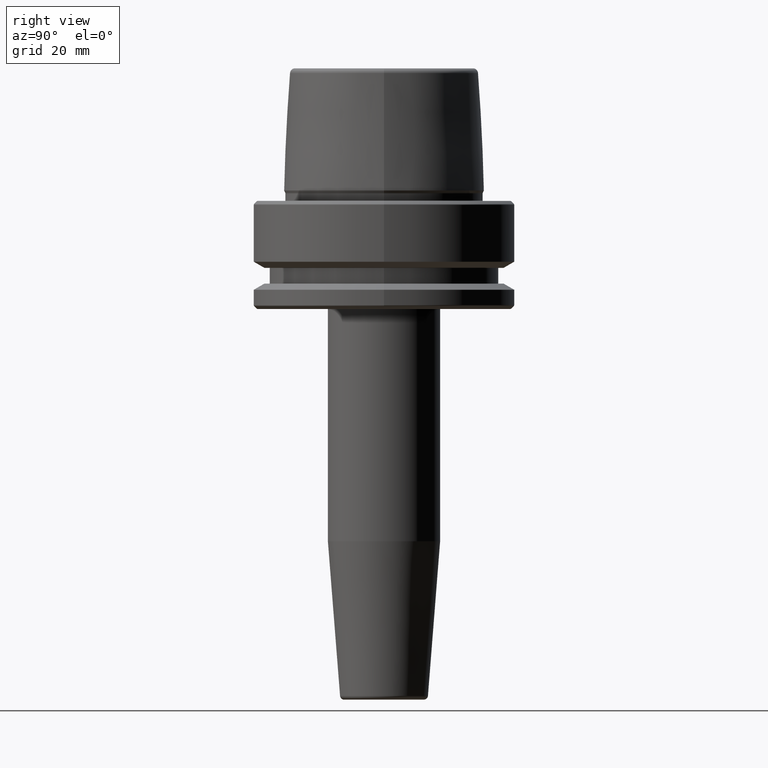
[diagram: clean part render]
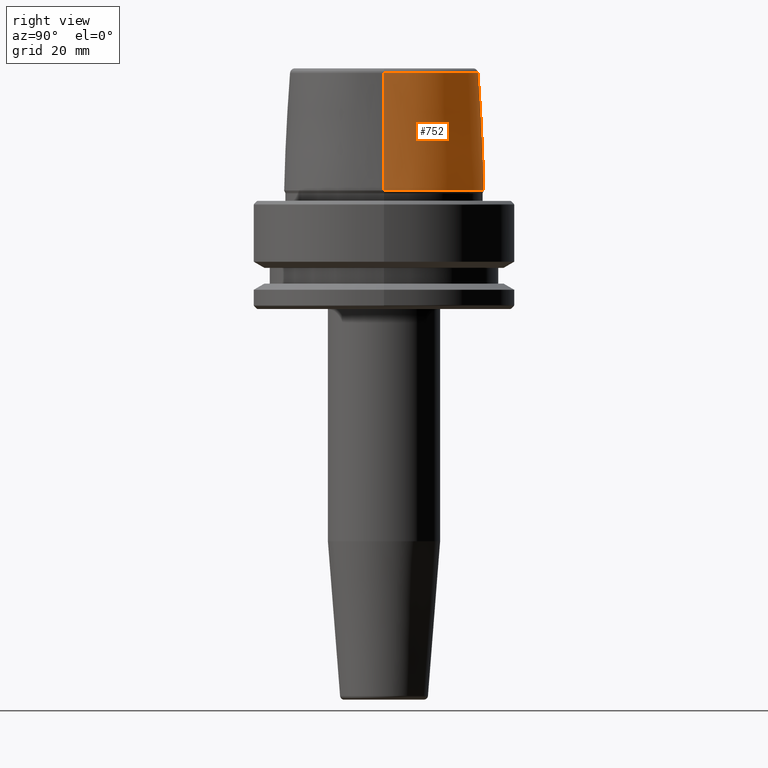
[diagram: same view with one face highlighted and labeled with its STEP entity id]
A machine part, right view. The second image highlights one B-rep face of the part: STEP entity #752.
In plain terms, the highlighted conical surface has half-angle 2.868 deg.
Its self-contained STEP definition (entity closure, byte-faithful):
#27 = CARTESIAN_POINT ( 'NONE',  ( -22.77957961851797100, 0.0000000000000000000, 30.76004333261571900 ) ) ;
#48 = ORIENTED_EDGE ( 'NONE', *, *, #343, .F. ) ;
#70 = EDGE_CURVE ( 'NONE', #428, #368, #147, .T. ) ;
#91 = CARTESIAN_POINT ( 'NONE',  ( 0.0000000000000000000, 0.0000000000000000000, 30.76004333261571900 ) ) ;
#96 = DIRECTION ( 'NONE',  ( -0.05003611051310804400, 0.0000000000000000000, -0.9987474093306675200 ) ) ;
#124 = CARTESIAN_POINT ( 'NONE',  ( 0.0000000000000000000, 0.0000000000000000000, 2.500000000000002200 ) ) ;
#147 = CIRCLE ( 'NONE', #1076, 24.19537568275369200 ) ;
#156 = EDGE_LOOP ( 'NONE', ( #48, #783, #773, #308 ) ) ;
#180 = VERTEX_POINT ( 'NONE', #27 ) ;
#196 = DIRECTION ( 'NONE',  ( 1.000000000000000000, 0.0000000000000000000, 0.0000000000000000000 ) ) ;
#217 = LINE ( 'NONE', #672, #723 ) ;
#220 = DIRECTION ( 'NONE',  ( 1.000000000000000000, 0.0000000000000000000, 0.0000000000000000000 ) ) ;
#252 = LINE ( 'NONE', #1149, #978 ) ;
#308 = ORIENTED_EDGE ( 'NONE', *, *, #1099, .F. ) ;
#343 = EDGE_CURVE ( 'NONE', #1222, #180, #733, .T. ) ;
#368 = VERTEX_POINT ( 'NONE', #1048 ) ;
#428 = VERTEX_POINT ( 'NONE', #1256 ) ;
#495 = CARTESIAN_POINT ( 'NONE',  ( 22.77957961851797100, 2.876386432489616700E-015, 30.76004333261571900 ) ) ;
#535 = DIRECTION ( 'NONE',  ( 0.0000000000000000000, 0.0000000000000000000, -1.000000000000000000 ) ) ;
#672 = CARTESIAN_POINT ( 'NONE',  ( -24.19537568275369200, 0.0000000000000000000, 2.500000000000002200 ) ) ;
#723 = VECTOR ( 'NONE', #96, 1000.000000000000200 ) ;
#733 = CIRCLE ( 'NONE', #793, 22.77957961851797100 ) ;
#752 = ADVANCED_FACE ( 'NONE', ( #1003 ), #967, .T. ) ;
#769 = DIRECTION ( 'NONE',  ( -0.0000000000000000000, -0.0000000000000000000, 1.000000000000000000 ) ) ;
#773 = ORIENTED_EDGE ( 'NONE', *, *, #70, .T. ) ;
#783 = ORIENTED_EDGE ( 'NONE', *, *, #831, .T. ) ;
#793 = AXIS2_PLACEMENT_3D ( 'NONE', #91, #769, #196 ) ;
#795 = DIRECTION ( 'NONE',  ( -0.0000000000000000000, -0.0000000000000000000, 1.000000000000000000 ) ) ;
#831 = EDGE_CURVE ( 'NONE', #1222, #428, #252, .T. ) ;
#967 = CONICAL_SURFACE ( 'NONE', #1028, 24.19537568275369200, 0.05005701257455997400 ) ;
#978 = VECTOR ( 'NONE', #1249, 1000.000000000000200 ) ;
#1003 = FACE_OUTER_BOUND ( 'NONE', #156, .T. ) ;
#1028 = AXIS2_PLACEMENT_3D ( 'NONE', #1126, #535, #1220 ) ;
#1048 = CARTESIAN_POINT ( 'NONE',  ( -24.19537568275369200, 2.963078938405201500E-015, 2.500000000000002200 ) ) ;
#1076 = AXIS2_PLACEMENT_3D ( 'NONE', #124, #795, #220 ) ;
#1099 = EDGE_CURVE ( 'NONE', #180, #368, #217, .T. ) ;
#1126 = CARTESIAN_POINT ( 'NONE',  ( 0.0000000000000000000, 0.0000000000000000000, 2.500000000000002200 ) ) ;
#1149 = CARTESIAN_POINT ( 'NONE',  ( 24.19537568275369200, 2.963078938405201500E-015, 2.500000000000002200 ) ) ;
#1220 = DIRECTION ( 'NONE',  ( -1.000000000000000000, 0.0000000000000000000, 0.0000000000000000000 ) ) ;
#1222 = VERTEX_POINT ( 'NONE', #495 ) ;
#1249 = DIRECTION ( 'NONE',  ( 0.05003611051310804400, 6.127656258166099700E-018, -0.9987474093306675200 ) ) ;
#1256 = CARTESIAN_POINT ( 'NONE',  ( 24.19537568275369200, 0.0000000000000000000, 2.500000000000002200 ) ) ;